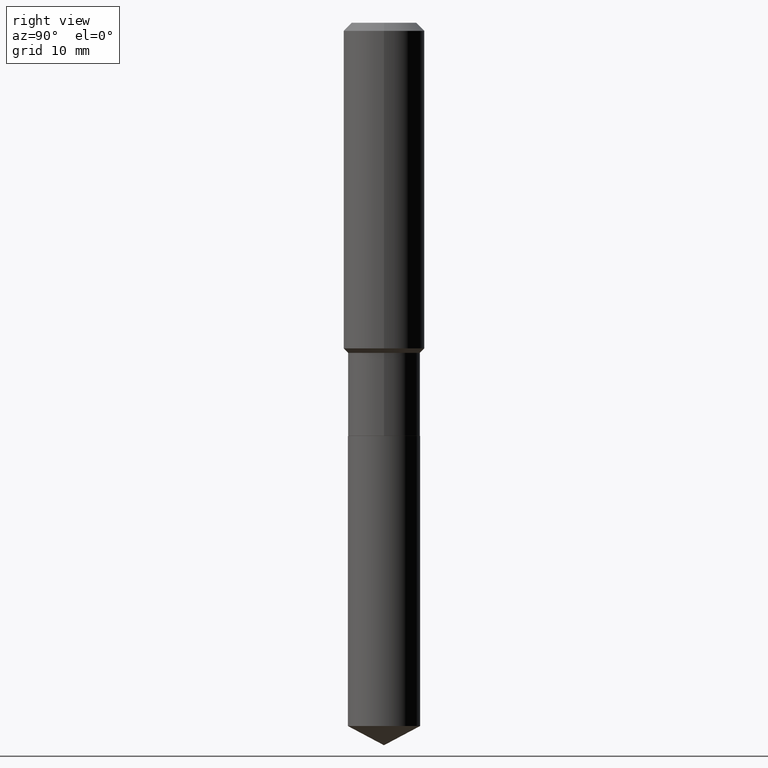
[diagram: clean part render]
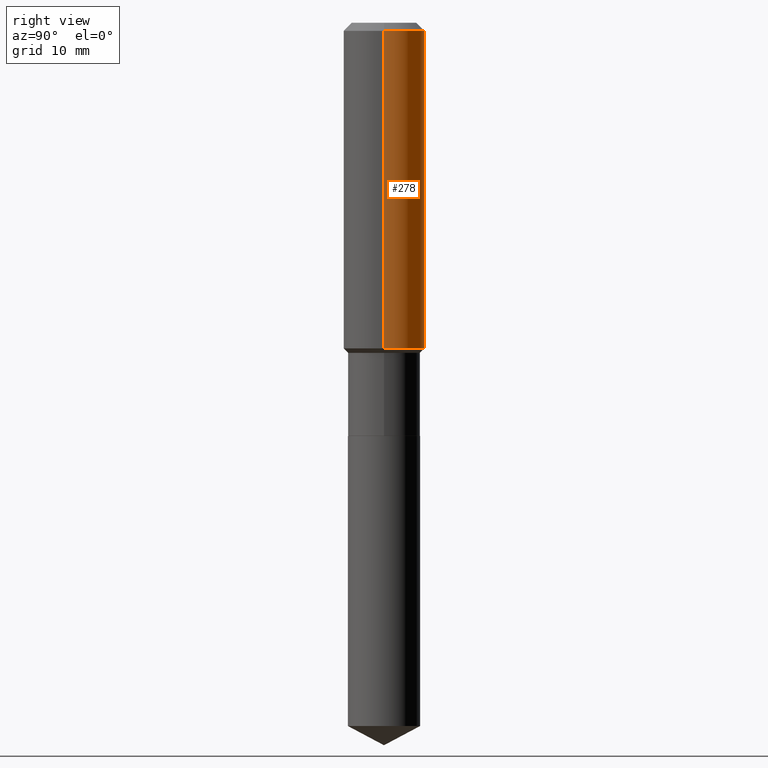
[diagram: same view with one face highlighted and labeled with its STEP entity id]
A machine part, right view. The second image highlights one B-rep face of the part: STEP entity #278.
In plain terms, the highlighted cylindrical surface (partial cylindrical patch) has radius 5 mm, axis along (-0, 0, 1).
Its self-contained STEP definition (entity closure, byte-faithful):
#7 = CIRCLE ( 'NONE', #177, 0.1968500000000002192 ) ;
#13 = CIRCLE ( 'NONE', #315, 0.1968500000000000250 ) ;
#22 = VERTEX_POINT ( 'NONE', #301 ) ;
#46 = ORIENTED_EDGE ( 'NONE', *, *, #250, .F. ) ;
#66 = DIRECTION ( 'NONE',  ( 1.000000000000000000, -6.982962677686266711E-15, 4.876176775795935793E-29 ) ) ;
#99 = CARTESIAN_POINT ( 'NONE',  ( 0.1968500000000000250, -1.512055823412797189E-15, -0.03937000000000029365 ) ) ;
#147 = VECTOR ( 'NONE', #389, 39.37007874015748143 ) ;
#162 = VERTEX_POINT ( 'NONE', #168 ) ;
#168 = CARTESIAN_POINT ( 'NONE',  ( -0.1968500000000000250, -1.426987386995387785E-15, -0.03937000000000029365 ) ) ;
#177 = AXIS2_PLACEMENT_3D ( 'NONE', #204, #469, #394 ) ;
#182 = EDGE_CURVE ( 'NONE', #22, #350, #7, .T. ) ;
#199 = CARTESIAN_POINT ( 'NONE',  ( 0.1968500000000001082, -1.374596203102542397E-15, 9.598753983154305062E-30 ) ) ;
#202 = EDGE_CURVE ( 'NONE', #22, #296, #280, .T. ) ;
#204 = CARTESIAN_POINT ( 'NONE',  ( 3.862006612167875814E-29, -5.513921904368036353E-15, -1.579249999999999599 ) ) ;
#212 = LINE ( 'NONE', #234, #147 ) ;
#234 = CARTESIAN_POINT ( 'NONE',  ( -0.1968500000000001082, 1.398703375343757985E-15, -9.682923725166787881E-30 ) ) ;
#250 = EDGE_CURVE ( 'NONE', #296, #162, #13, .T. ) ;
#263 = AXIS2_PLACEMENT_3D ( 'NONE', #447, #419, #66 ) ;
#278 = ADVANCED_FACE ( 'NONE', ( #477 ), #371, .T. ) ;
#280 = LINE ( 'NONE', #199, #308 ) ;
#296 = VERTEX_POINT ( 'NONE', #99 ) ;
#301 = CARTESIAN_POINT ( 'NONE',  ( 0.1968500000000002192, -6.888518107470578750E-15, -1.579249999999999599 ) ) ;
#308 = VECTOR ( 'NONE', #429, 39.37007874015748143 ) ;
#315 = AXIS2_PLACEMENT_3D ( 'NONE', #449, #407, #411 ) ;
#349 = EDGE_CURVE ( 'NONE', #350, #162, #212, .T. ) ;
#350 = VERTEX_POINT ( 'NONE', #366 ) ;
#351 = ORIENTED_EDGE ( 'NONE', *, *, #349, .T. ) ;
#366 = CARTESIAN_POINT ( 'NONE',  ( -0.1968500000000002192, -4.115218529024277777E-15, -1.579249999999999599 ) ) ;
#371 = CYLINDRICAL_SURFACE ( 'NONE', #263, 0.1968500000000001082 ) ;
#389 = DIRECTION ( 'NONE',  ( -2.445468806185136877E-29, 3.491481338843145188E-15, 1.000000000000000000 ) ) ;
#394 = DIRECTION ( 'NONE',  ( 1.000000000000000000, -6.982962677686265922E-15, 0.000000000000000000 ) ) ;
#407 = DIRECTION ( 'NONE',  ( -2.445468806185136597E-29, 3.491481338843145583E-15, 1.000000000000000000 ) ) ;
#411 = DIRECTION ( 'NONE',  ( 1.000000000000000000, -6.982962677686265922E-15, 0.000000000000000000 ) ) ;
#419 = DIRECTION ( 'NONE',  ( -2.445468806185136597E-29, 3.491481338843145583E-15, 1.000000000000000000 ) ) ;
#429 = DIRECTION ( 'NONE',  ( -2.445468806185136877E-29, 3.491481338843145188E-15, 1.000000000000000000 ) ) ;
#447 = CARTESIAN_POINT ( 'NONE',  ( 0.000000000000000000, 0.000000000000000000, 0.000000000000000000 ) ) ;
#449 = CARTESIAN_POINT ( 'NONE',  ( 9.627810689950954155E-31, -1.374596203102556547E-16, -0.03937000000000029365 ) ) ;
#468 = ORIENTED_EDGE ( 'NONE', *, *, #202, .F. ) ;
#469 = DIRECTION ( 'NONE',  ( -2.445468806185136597E-29, 3.491481338843145583E-15, 1.000000000000000000 ) ) ;
#476 = ORIENTED_EDGE ( 'NONE', *, *, #182, .T. ) ;
#477 = FACE_OUTER_BOUND ( 'NONE', #479, .T. ) ;
#479 = EDGE_LOOP ( 'NONE', ( #476, #351, #46, #468 ) ) ;